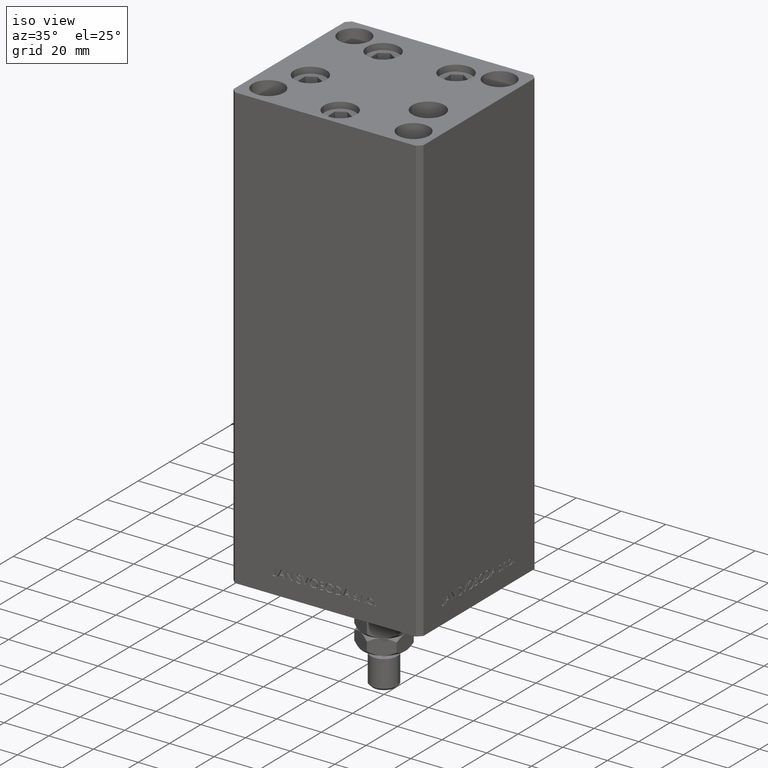
[diagram: clean part render]
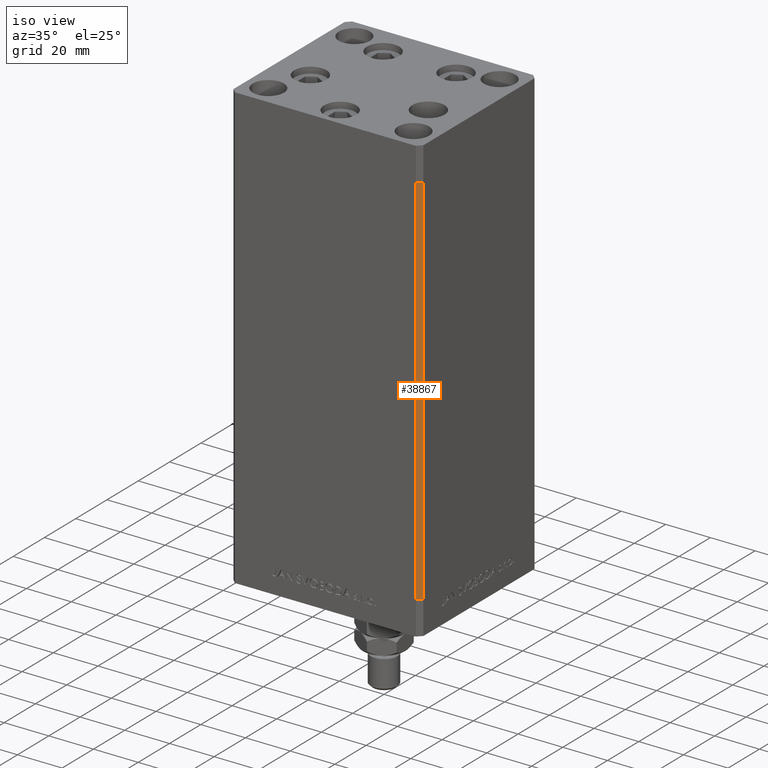
[diagram: same view with one face highlighted and labeled with its STEP entity id]
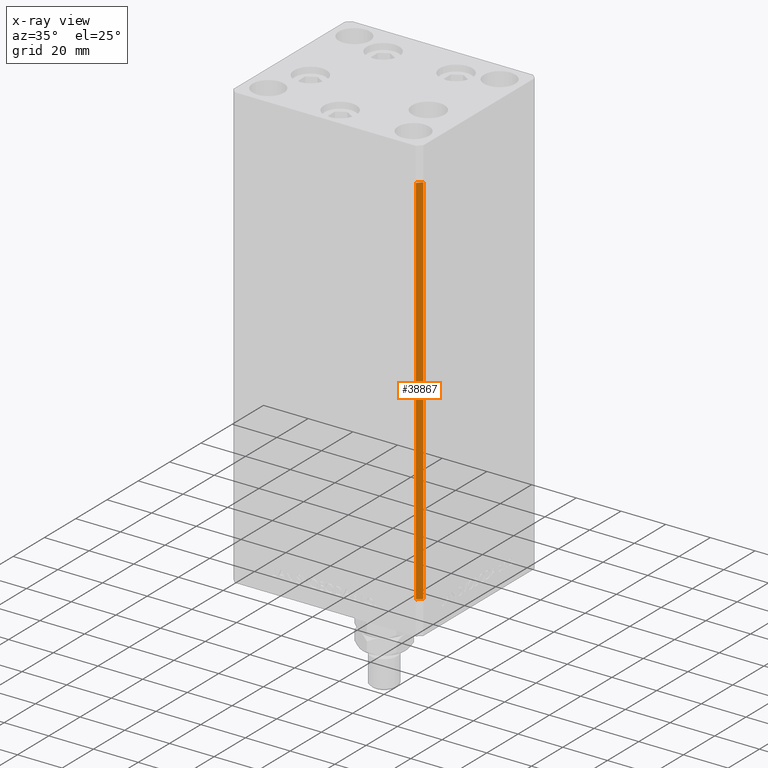
[diagram: x-ray of the same camera — body ghosted, the highlighted face saturated]
A machine part, iso view. The second image highlights one B-rep face of the part: STEP entity #38867.
The next image is the same camera in x-ray: the body ghosted, the highlighted face saturated — about 0% of this face is hidden behind the body in this view.
In plain terms, the highlighted planar face has unit normal (0.7071, -0.7071, 0).
Its self-contained STEP definition (entity closure, byte-faithful):
#591 = EDGE_CURVE ( 'NONE', #20058, #37156, #30332, .T. ) ;
#1380 = CARTESIAN_POINT ( 'NONE',  ( 40.49999999999998579, -37.50000000000000711, 0.000000000000000000 ) ) ;
#1989 = CARTESIAN_POINT ( 'NONE',  ( 42.49999999999998579, -35.50000000000000711, 168.5000000000000000 ) ) ;
#4384 = DIRECTION ( 'NONE',  ( -0.7071067811865474617, -0.7071067811865474617, 0.000000000000000000 ) ) ;
#5025 = EDGE_CURVE ( 'NONE', #39135, #24529, #12704, .T. ) ;
#5064 = DIRECTION ( 'NONE',  ( 0.7071067811865474617, 0.7071067811865474617, 0.000000000000000000 ) ) ;
#6025 = ORIENTED_EDGE ( 'NONE', *, *, #591, .T. ) ;
#6315 = VECTOR ( 'NONE', #7956, 1000.000000000000114 ) ;
#6851 = VECTOR ( 'NONE', #45651, 1000.000000000000000 ) ;
#7956 = DIRECTION ( 'NONE',  ( -0.7071067811865474617, -0.7071067811865474617, 0.000000000000000000 ) ) ;
#9122 = VECTOR ( 'NONE', #4384, 1000.000000000000114 ) ;
#12704 = LINE ( 'NONE', #19871, #34700 ) ;
#13590 = EDGE_LOOP ( 'NONE', ( #26833, #33958, #41866, #6025 ) ) ;
#16747 = CARTESIAN_POINT ( 'NONE',  ( 42.49999999999998579, -35.50000000000000711, 168.5000000000000000 ) ) ;
#19871 = CARTESIAN_POINT ( 'NONE',  ( 42.49999999999998579, -35.50000000000000711, 168.5000000000000000 ) ) ;
#20058 = VERTEX_POINT ( 'NONE', #49140 ) ;
#20888 = FACE_OUTER_BOUND ( 'NONE', #13590, .T. ) ;
#24529 = VERTEX_POINT ( 'NONE', #49759 ) ;
#26833 = ORIENTED_EDGE ( 'NONE', *, *, #46510, .F. ) ;
#29332 = DIRECTION ( 'NONE',  ( 0.7071067811865475727, -0.7071067811865475727, 0.000000000000000000 ) ) ;
#30332 = LINE ( 'NONE', #37735, #6851 ) ;
#30984 = CARTESIAN_POINT ( 'NONE',  ( 42.49999999999998579, -35.50000000000000711, 168.5000000000000000 ) ) ;
#31756 = EDGE_CURVE ( 'NONE', #39135, #20058, #39382, .T. ) ;
#33958 = ORIENTED_EDGE ( 'NONE', *, *, #5025, .F. ) ;
#34700 = VECTOR ( 'NONE', #43613, 1000.000000000000000 ) ;
#34780 = CARTESIAN_POINT ( 'NONE',  ( 42.49999999999998579, -35.50000000000000711, 0.000000000000000000 ) ) ;
#36604 = AXIS2_PLACEMENT_3D ( 'NONE', #1989, #29332, #5064 ) ;
#37156 = VERTEX_POINT ( 'NONE', #1380 ) ;
#37735 = CARTESIAN_POINT ( 'NONE',  ( 40.49999999999998579, -37.50000000000000711, 168.5000000000000000 ) ) ;
#38867 = ADVANCED_FACE ( 'NONE', ( #20888 ), #48746, .T. ) ;
#39135 = VERTEX_POINT ( 'NONE', #16747 ) ;
#39368 = LINE ( 'NONE', #34780, #9122 ) ;
#39382 = LINE ( 'NONE', #30984, #6315 ) ;
#41866 = ORIENTED_EDGE ( 'NONE', *, *, #31756, .T. ) ;
#43613 = DIRECTION ( 'NONE',  ( -0.000000000000000000, -0.000000000000000000, -1.000000000000000000 ) ) ;
#45651 = DIRECTION ( 'NONE',  ( -0.000000000000000000, -0.000000000000000000, -1.000000000000000000 ) ) ;
#46510 = EDGE_CURVE ( 'NONE', #24529, #37156, #39368, .T. ) ;
#48746 = PLANE ( 'NONE',  #36604 ) ;
#49140 = CARTESIAN_POINT ( 'NONE',  ( 40.49999999999998579, -37.50000000000000711, 168.5000000000000000 ) ) ;
#49759 = CARTESIAN_POINT ( 'NONE',  ( 42.49999999999998579, -35.50000000000000711, 0.000000000000000000 ) ) ;